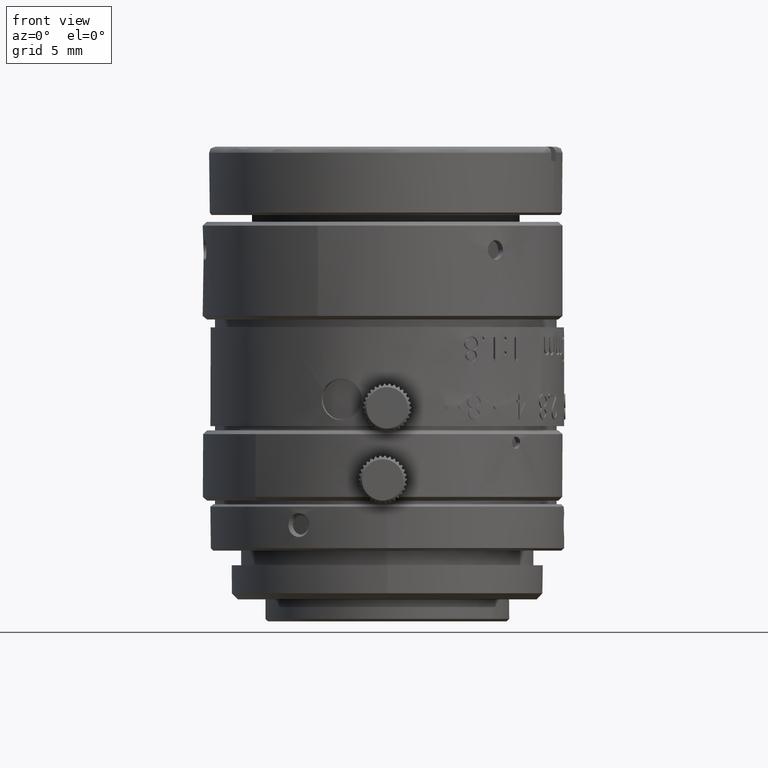
[diagram: clean part render]
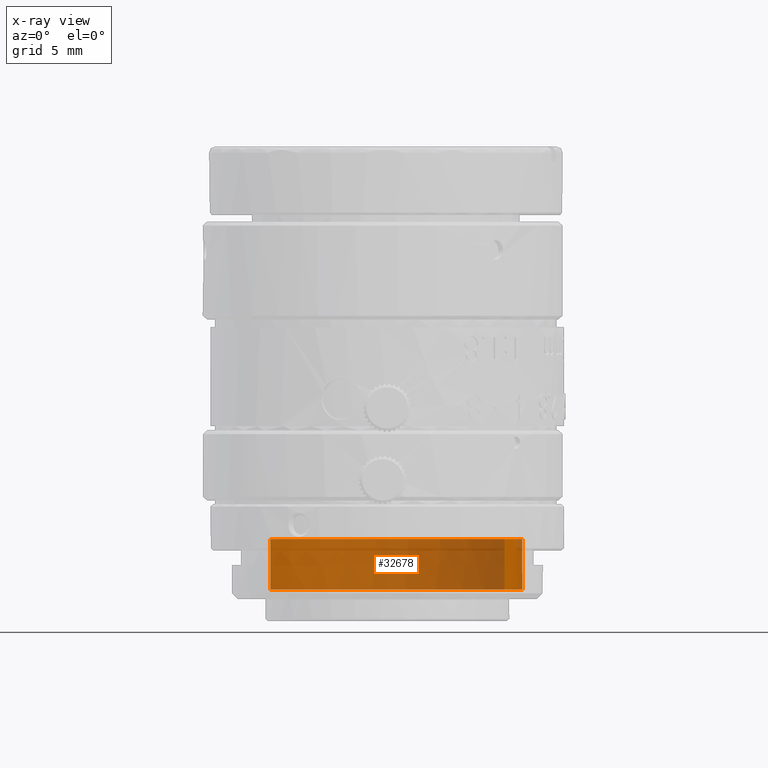
[diagram: x-ray — body ghosted, one internal face saturated and labeled with its STEP entity id]
A machine part, front view, then the same camera in x-ray: the body is ghosted and one INTERNAL B-rep face — a face not visible from any outside direction — is saturated and labeled: STEP entity #32678.
In plain terms, the highlighted face is a freeform B-spline surface patch.
Its self-contained STEP definition (entity closure, byte-faithful):
#193 = CARTESIAN_POINT ( 'NONE',  ( 3.253751669657420909, -2.564685851652706017, -8.386615389999995784 ) ) ;
#917 = CARTESIAN_POINT ( 'NONE',  ( 9.961199896888318861, -18.82832378896409864, -12.52861538999999880 ) ) ;
#1112 = CARTESIAN_POINT ( 'NONE',  ( -9.212782050888320029, -7.738647677035899619, -12.52861538999999880 ) ) ;
#2648 = CARTESIAN_POINT ( 'NONE',  ( -5.964691121421882514, -2.122718388052007299, -12.52861538999999880 ) ) ;
#3035 = FACE_OUTER_BOUND ( 'NONE', #38454, .T. ) ;
#3581 = CARTESIAN_POINT ( 'NONE',  ( 8.723507362969865397, -5.970917590690411281, -8.386615389999995784 ) ) ;
#3778 = CARTESIAN_POINT ( 'NONE',  ( 10.63195096402359496, -9.045188215010471211, -8.386615389999999337 ) ) ;
#4725 = ORIENTED_EDGE ( 'NONE', *, *, #20131, .F. ) ;
#4854 = CARTESIAN_POINT ( 'NONE',  ( 9.961199896888318861, -18.82832378896409864, -12.52861538999999880 ) ) ;
#6173 = CARTESIAN_POINT ( 'NONE',  ( 10.32527915963901677, -18.19883299415090150, -8.386615390000004666 ) ) ;
#6375 = CARTESIAN_POINT ( 'NONE',  ( -1.067347607919937102, -2.278652608184213335, -8.386615389999995784 ) ) ;
#7304 = CARTESIAN_POINT ( 'NONE',  ( 9.961199899414399539, -18.82832379299379966, -8.386615389999999337 ) ) ;
#8319 = EDGE_CURVE ( 'NONE', #18872, #10931, #29009, .T. ) ;
#8841 = CARTESIAN_POINT ( 'NONE',  ( 0.3031176868192234086, -0.4484038268582433151, -12.52861538999999880 ) ) ;
#8978 = CARTESIAN_POINT ( 'NONE',  ( -7.466935336679394020, -5.428494059447793063, -8.386615389999997561 ) ) ;
#9081 = B_SPLINE_CURVE_WITH_KNOTS ( 'NONE', 1,
 ( #10564, #19770 ),
 .UNSPECIFIED., .F., .F.,
 ( 2, 2 ),
 ( -1.000000000000000000, 0.0000000000000000000 ),
 .UNSPECIFIED. ) ;
#9174 = CARTESIAN_POINT ( 'NONE',  ( 9.961199899414399539, -18.82832379299379966, -8.386615389999999337 ) ) ;
#9571 = CARTESIAN_POINT ( 'NONE',  ( -8.848702793669732003, -7.109156880800807876, -8.386615390000001113 ) ) ;
#9772 = CARTESIAN_POINT ( 'NONE',  ( 1.107287946364685194, -2.208873656882666126, -8.386615389999995784 ) ) ;
#10294 = CARTESIAN_POINT ( 'NONE',  ( 9.961199896888318861, -18.82832378896409864, -12.52861538999999880 ) ) ;
#10564 = CARTESIAN_POINT ( 'NONE',  ( -9.212782055262678682, -7.738647676201880543, -8.386615389999999337 ) ) ;
#10931 = VERTEX_POINT ( 'NONE', #11257 ) ;
#11257 = CARTESIAN_POINT ( 'NONE',  ( -9.212782055262678682, -7.738647676201880543, -8.386615389999999337 ) ) ;
#11846 = CARTESIAN_POINT ( 'NONE',  ( -5.964691121421882514, -2.122718388052007299, -8.386615389999999337 ) ) ;
#12041 = CARTESIAN_POINT ( 'NONE',  ( 11.53497626924812458, -6.944585690867229211, -8.386615389999999337 ) ) ;
#12379 = CARTESIAN_POINT ( 'NONE',  ( 11.25788166082507047, -15.45836626236612688, -8.386615389999997561 ) ) ;
#12792 = CARTESIAN_POINT ( 'NONE',  ( 5.289556184150899121, -3.332415496360985330, -8.386615390000001113 ) ) ;
#12916 = ORIENTED_EDGE ( 'NONE', *, *, #35883, .F. ) ;
#13453 = ORIENTED_EDGE ( 'NONE', *, *, #35865, .F. ) ;
#14846 = CARTESIAN_POINT ( 'NONE',  ( 11.53497626924812458, -6.944585690867229211, -12.52861538999999880 ) ) ;
#15179 = CARTESIAN_POINT ( 'NONE',  ( 10.62445680774374601, -17.53987575180562075, -8.386615390000001113 ) ) ;
#15234 = CARTESIAN_POINT ( 'NONE',  ( 13.20929082915634112, -13.21239449945174194, -8.386615389999999337 ) ) ;
#16505 = CARTESIAN_POINT ( 'NONE',  ( 1.876894063898549847, 11.43533425942145954, -12.52861538999999702 ) ) ;
#18185 = CARTESIAN_POINT ( 'NONE',  ( 11.47305307651547501, -13.29327732610441615, -8.386615389999997561 ) ) ;
#18379 = CARTESIAN_POINT ( 'NONE',  ( 4.630598941805621038, -3.033237848256251201, -8.386615389999999337 ) ) ;
#18574 = CARTESIAN_POINT ( 'NONE',  ( -5.168982956343087132, -3.668005449055296019, -8.386615389999995784 ) ) ;
#18872 = VERTEX_POINT ( 'NONE', #7304 ) ;
#19302 = CARTESIAN_POINT ( 'NONE',  ( 21.05087599986863012, 0.3456581521730228701, -12.52861538999988511 ) ) ;
#19770 = CARTESIAN_POINT ( 'NONE',  ( -9.212782050888320029, -7.738647677035899619, -12.52861538999999880 ) ) ;
#20131 = EDGE_CURVE ( 'NONE', #10931, #24260, #9081, .T. ) ;
#21193 = CARTESIAN_POINT ( 'NONE',  ( -9.212782055262678682, -7.738647676201880543, -8.386615389999999337 ) ) ;
#21389 = CARTESIAN_POINT ( 'NONE',  ( 11.09300880434729919, -16.16302847965741307, -8.386615390000002890 ) ) ;
#21447 = CARTESIAN_POINT ( 'NONE',  ( -9.212782052274530287, -7.738647679932652679, -12.52861538999999880 ) ) ;
#21589 = CARTESIAN_POINT ( 'NONE',  ( 11.37904204781578343, -11.84192920208005972, -8.386615389999995784 ) ) ;
#21678 =( BOUNDED_SURFACE ( )  B_SPLINE_SURFACE ( 1, 3, ( 
 ( #30607, #36022, #14846, #33015, #8841, #2648, #21447 ),
 ( #30025, #15234, #12041, #27414, #27022, #11846, #24045 ) ),
 .UNSPECIFIED., .F., .F., .F. ) 
 B_SPLINE_SURFACE_WITH_KNOTS ( ( 2, 2 ),
 ( 4, 3, 4 ),
 ( 0.0000000000000000000, 1.000000000000000000 ),
 ( 0.0000000000000000000, 0.5000000000000000000, 1.000000000000000000 ),
 .UNSPECIFIED. ) 
 GEOMETRIC_REPRESENTATION_ITEM ( )  RATIONAL_B_SPLINE_SURFACE ( (
 ( 1.000000000000000000, 0.8047378540760217192, 0.8047378540760217192, 1.000000000000000000, 0.8047378540760217192, 0.8047378540760217192, 1.000000000000000000),
 ( 1.000000000000000000, 0.8047378540760217192, 0.8047378540760217192, 1.000000000000000000, 0.8047378540760217192, 0.8047378540760217192, 1.000000000000000000) ) ) 
 REPRESENTATION_ITEM ( '' )  SURFACE ( )  );
#21986 = CARTESIAN_POINT ( 'NONE',  ( -5.783837099410121141, -4.049694169266023991, -8.386615389999999337 ) ) ;
#24045 = CARTESIAN_POINT ( 'NONE',  ( -9.212782052274530287, -7.738647679932652679, -8.386615389999999337 ) ) ;
#24181 = CARTESIAN_POINT ( 'NONE',  ( -1.781464699880221492, -2.395992517042695003, -8.386615389999999337 ) ) ;
#24260 = VERTEX_POINT ( 'NONE', #26373 ) ;
#24566 = CARTESIAN_POINT ( 'NONE',  ( 11.44882099911732709, -14.01656475636471377, -8.386615389999995784 ) ) ;
#24769 = CARTESIAN_POINT ( 'NONE',  ( 10.88635353222307955, -9.722691866303073027, -8.386615389999995784 ) ) ;
#24972 = CARTESIAN_POINT ( 'NONE',  ( -3.186584943696928018, -2.771341123776920767, -8.386615389999995784 ) ) ;
#26078 = B_SPLINE_CURVE_WITH_KNOTS ( 'NONE', 1,
 ( #10294, #37087 ),
 .UNSPECIFIED., .F., .F.,
 ( 2, 2 ),
 ( -1.000000000000000000, 0.0000000000000000000 ),
 .UNSPECIFIED. ) ;
#26373 = CARTESIAN_POINT ( 'NONE',  ( -9.212782050888320029, -7.738647677035899619, -12.52861538999999880 ) ) ;
#26895 = ORIENTED_EDGE ( 'NONE', *, *, #8319, .F. ) ;
#27022 = CARTESIAN_POINT ( 'NONE',  ( 0.3031176868192234086, -0.4484038268582433151, -8.386615389999999337 ) ) ;
#27414 = CARTESIAN_POINT ( 'NONE',  ( 5.919046978033674300, -3.696494758862736152, -8.386615389999999337 ) ) ;
#27554 = CARTESIAN_POINT ( 'NONE',  ( 6.548537790368397005, -4.060574001161063151, -8.386615390000001113 ) ) ;
#27961 = CARTESIAN_POINT ( 'NONE',  ( 11.26170213895730043, -11.12781211011977334, -8.386615389999997561 ) ) ;
#29009 = B_SPLINE_CURVE_WITH_KNOTS ( 'NONE', 3,
 ( #9174, #6173, #15179, #21389, #12379, #24566, #18185, #21589, #27961, #24769, #3778, #30949, #39361, #3581, #30355, #33549, #27554, #12792, #18379, #193, #36750, #9772, #33751, #6375, #24181, #24972, #37160, #18574, #21986, #36352, #8978, #30745, #9571, #21193 ),
 .UNSPECIFIED., .F., .F.,
 ( 4, 2, 2, 2, 2, 2, 2, 2, 2, 2, 2, 2, 2, 2, 2, 2, 4 ),
 ( 5.758821282681950038, 5.955170823526427348, 6.151520364370905547, 6.347869905215382857, 6.544219446059860168, 6.740568986904338367, 6.936918527748815677, 7.133268068593292988, 7.329617609437770298, 7.525967150282247609, 7.722316691126724919, 7.918666231971202230, 8.115015772815679540, 8.311365313660155962, 8.507714854504634161, 8.704064395349110583, 8.900413936193588782 ),
 .UNSPECIFIED. ) ;
#30025 = CARTESIAN_POINT ( 'NONE',  ( 9.961199896000000109, -18.82832378999999889, -8.386615389999999337 ) ) ;
#30355 = CARTESIAN_POINT ( 'NONE',  ( 8.229200596552203706, -5.442341473320603029, -8.386615389999999337 ) ) ;
#30607 = CARTESIAN_POINT ( 'NONE',  ( 9.961199896000000109, -18.82832378999999889, -12.52861538999999880 ) ) ;
#30745 = CARTESIAN_POINT ( 'NONE',  ( -8.426717595243969683, -6.521228001354382187, -8.386615389999999337 ) ) ;
#30873 =( BOUNDED_CURVE ( )  B_SPLINE_CURVE ( 3, ( #1112, #16505, #19302, #917 ),
 .UNSPECIFIED., .F., .F. ) 
 B_SPLINE_CURVE_WITH_KNOTS ( ( 4, 4 ),
 ( -3.141592653589795336, 0.0000000000000000000 ),
 .UNSPECIFIED. ) 
 CURVE ( )  GEOMETRIC_REPRESENTATION_ITEM ( )  RATIONAL_B_SPLINE_CURVE ( ( 1.000000000000000000, 0.3333333335299309419, 0.3333333335299309419, 1.000000000000000000 ) ) 
 REPRESENTATION_ITEM ( '' )  );
#30949 = CARTESIAN_POINT ( 'NONE',  ( 9.989689206944726507, -7.740293853656955214, -8.386615389999997561 ) ) ;
#32678 = ADVANCED_FACE ( 'NONE', ( #3035 ), #21678, .F. ) ;
#33015 = CARTESIAN_POINT ( 'NONE',  ( 5.919046978033674300, -3.696494758862736152, -12.52861538999999880 ) ) ;
#33549 = CARTESIAN_POINT ( 'NONE',  ( 7.136466654645621688, -4.482559214756038024, -8.386615389999999337 ) ) ;
#33751 = CARTESIAN_POINT ( 'NONE',  ( 0.3840005161044181548, -2.184641579484524421, -8.386615389999997561 ) ) ;
#35865 = EDGE_CURVE ( 'NONE', #24260, #37821, #30873, .T. ) ;
#35883 = EDGE_CURVE ( 'NONE', #37821, #18872, #26078, .T. ) ;
#36022 = CARTESIAN_POINT ( 'NONE',  ( 13.20929082915634112, -13.21239449945174194, -12.52861538999999880 ) ) ;
#36352 = CARTESIAN_POINT ( 'NONE',  ( -6.938359219309590209, -4.934187293030134036, -8.386615389999995784 ) ) ;
#36750 = CARTESIAN_POINT ( 'NONE',  ( 2.549089452366163577, -2.399812995174934738, -8.386615389999999337 ) ) ;
#37087 = CARTESIAN_POINT ( 'NONE',  ( 9.961199899414399539, -18.82832379299379966, -8.386615389999999337 ) ) ;
#37160 = CARTESIAN_POINT ( 'NONE',  ( -3.864088594989489867, -3.025743691976383598, -8.386615389999997561 ) ) ;
#37821 = VERTEX_POINT ( 'NONE', #4854 ) ;
#38454 = EDGE_LOOP ( 'NONE', ( #4725, #26895, #12916, #13453 ) ) ;
#39361 = CARTESIAN_POINT ( 'NONE',  ( 9.608000486733978107, -7.125439710589876796, -8.386615390000001113 ) ) ;